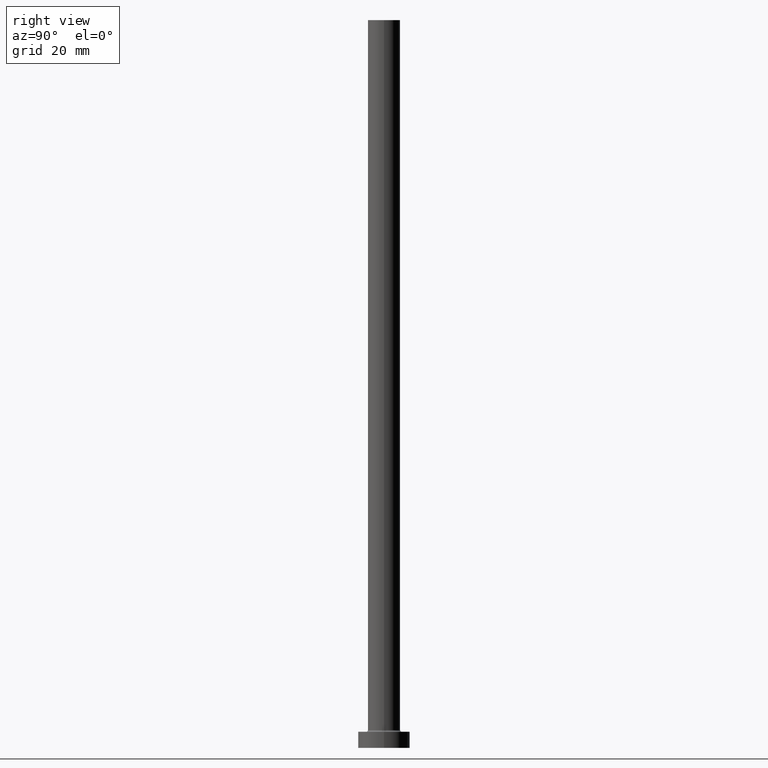
[diagram: clean part render]
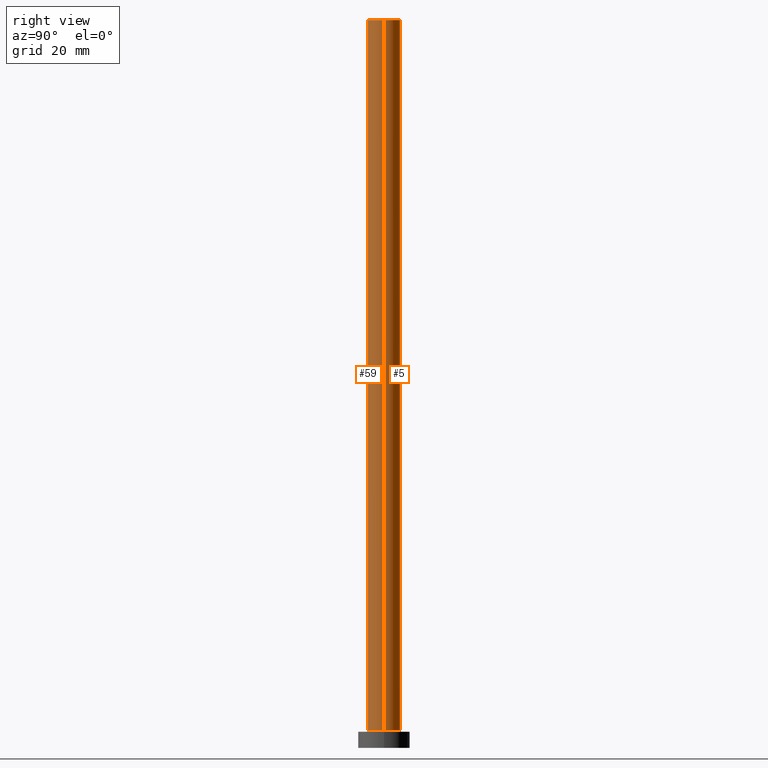
[diagram: same view with one multi-face feature highlighted, each face labeled with its STEP entity id]
A machine part, right view. The highlighted faces form ONE feature: a constant-radius fillet chain: 2 tangent blend faces with common blend radius 5 mm. The faces share edges in the B-rep.
Their STEP definitions:
[1] entity #5 (Cylinder):
#1 = VERTEX_POINT ( 'NONE', #301 ) ;
#5 = ADVANCED_FACE ( 'NONE', ( #139 ), #453, .T. ) ;
#9 = VECTOR ( 'NONE', #232, 1000.000000000000000 ) ;
#12 = CIRCLE ( 'NONE', #402, 5.000000000000000000 ) ;
#13 = CARTESIAN_POINT ( 'NONE',  ( 0.000000000000000000, 0.000000000000000000, 5.500000000000005329 ) ) ;
#22 = CARTESIAN_POINT ( 'NONE',  ( -5.000000000000000000, 0.000000000000000000, 225.0000000000000000 ) ) ;
#34 = DIRECTION ( 'NONE',  ( 1.000000000000000000, 0.000000000000000000, 0.000000000000000000 ) ) ;
#35 = EDGE_CURVE ( 'NONE', #427, #1, #350, .T. ) ;
#56 = VERTEX_POINT ( 'NONE', #345 ) ;
#82 = EDGE_CURVE ( 'NONE', #122, #56, #423, .T. ) ;
#96 = DIRECTION ( 'NONE',  ( -0.000000000000000000, -0.000000000000000000, -1.000000000000000000 ) ) ;
#100 = CARTESIAN_POINT ( 'NONE',  ( 5.000000000000000000, 6.123233995736766282E-16, 225.0000000000000000 ) ) ;
#122 = VERTEX_POINT ( 'NONE', #222 ) ;
#134 = DIRECTION ( 'NONE',  ( 0.000000000000000000, 0.000000000000000000, 1.000000000000000000 ) ) ;
#139 = FACE_OUTER_BOUND ( 'NONE', #451, .T. ) ;
#150 = DIRECTION ( 'NONE',  ( 0.000000000000000000, 0.000000000000000000, 1.000000000000000000 ) ) ;
#186 = ORIENTED_EDGE ( 'NONE', *, *, #82, .T. ) ;
#211 = VECTOR ( 'NONE', #237, 1000.000000000000000 ) ;
#222 = CARTESIAN_POINT ( 'NONE',  ( 5.000000000000000000, 6.123233995736766282E-16, 225.0000000000000000 ) ) ;
#232 = DIRECTION ( 'NONE',  ( -0.000000000000000000, -0.000000000000000000, -1.000000000000000000 ) ) ;
#237 = DIRECTION ( 'NONE',  ( -0.000000000000000000, -0.000000000000000000, -1.000000000000000000 ) ) ;
#255 = AXIS2_PLACEMENT_3D ( 'NONE', #418, #96, #276 ) ;
#256 = ORIENTED_EDGE ( 'NONE', *, *, #274, .T. ) ;
#274 = EDGE_CURVE ( 'NONE', #56, #1, #299, .T. ) ;
#276 = DIRECTION ( 'NONE',  ( -1.000000000000000000, 0.000000000000000000, 0.000000000000000000 ) ) ;
#289 = DIRECTION ( 'NONE',  ( 1.000000000000000000, 0.000000000000000000, 0.000000000000000000 ) ) ;
#299 = CIRCLE ( 'NONE', #442, 5.000000000000000000 ) ;
#301 = CARTESIAN_POINT ( 'NONE',  ( -5.000000000000000000, 0.000000000000000000, 5.500000000000005329 ) ) ;
#310 = CARTESIAN_POINT ( 'NONE',  ( 0.000000000000000000, 0.000000000000000000, 225.0000000000000000 ) ) ;
#345 = CARTESIAN_POINT ( 'NONE',  ( 5.000000000000000000, 6.123233995736766282E-16, 5.500000000000005329 ) ) ;
#350 = LINE ( 'NONE', #457, #9 ) ;
#355 = EDGE_CURVE ( 'NONE', #122, #427, #12, .T. ) ;
#375 = ORIENTED_EDGE ( 'NONE', *, *, #355, .F. ) ;
#402 = AXIS2_PLACEMENT_3D ( 'NONE', #310, #134, #34 ) ;
#415 = ORIENTED_EDGE ( 'NONE', *, *, #35, .F. ) ;
#418 = CARTESIAN_POINT ( 'NONE',  ( 0.000000000000000000, 0.000000000000000000, 225.0000000000000000 ) ) ;
#423 = LINE ( 'NONE', #100, #211 ) ;
#427 = VERTEX_POINT ( 'NONE', #22 ) ;
#442 = AXIS2_PLACEMENT_3D ( 'NONE', #13, #150, #289 ) ;
#451 = EDGE_LOOP ( 'NONE', ( #375, #186, #256, #415 ) ) ;
#453 = CYLINDRICAL_SURFACE ( 'NONE', #255, 5.000000000000000000 ) ;
#457 = CARTESIAN_POINT ( 'NONE',  ( -5.000000000000000000, 0.000000000000000000, 225.0000000000000000 ) ) ;
[2] entity #59 (Cylinder):
#1 = VERTEX_POINT ( 'NONE', #301 ) ;
#2 = CARTESIAN_POINT ( 'NONE',  ( 0.000000000000000000, 0.000000000000000000, 225.0000000000000000 ) ) ;
#9 = VECTOR ( 'NONE', #232, 1000.000000000000000 ) ;
#22 = CARTESIAN_POINT ( 'NONE',  ( -5.000000000000000000, 0.000000000000000000, 225.0000000000000000 ) ) ;
#33 = DIRECTION ( 'NONE',  ( 1.000000000000000000, 0.000000000000000000, 0.000000000000000000 ) ) ;
#35 = EDGE_CURVE ( 'NONE', #427, #1, #350, .T. ) ;
#56 = VERTEX_POINT ( 'NONE', #345 ) ;
#59 = ADVANCED_FACE ( 'NONE', ( #340 ), #172, .T. ) ;
#82 = EDGE_CURVE ( 'NONE', #122, #56, #423, .T. ) ;
#86 = DIRECTION ( 'NONE',  ( 1.000000000000000000, 0.000000000000000000, 0.000000000000000000 ) ) ;
#91 = ORIENTED_EDGE ( 'NONE', *, *, #82, .F. ) ;
#100 = CARTESIAN_POINT ( 'NONE',  ( 5.000000000000000000, 6.123233995736766282E-16, 225.0000000000000000 ) ) ;
#116 = EDGE_CURVE ( 'NONE', #427, #122, #454, .T. ) ;
#122 = VERTEX_POINT ( 'NONE', #222 ) ;
#142 = DIRECTION ( 'NONE',  ( -0.000000000000000000, -0.000000000000000000, -1.000000000000000000 ) ) ;
#154 = CARTESIAN_POINT ( 'NONE',  ( 0.000000000000000000, 0.000000000000000000, 225.0000000000000000 ) ) ;
#160 = DIRECTION ( 'NONE',  ( 0.000000000000000000, 0.000000000000000000, 1.000000000000000000 ) ) ;
#171 = ORIENTED_EDGE ( 'NONE', *, *, #116, .F. ) ;
#172 = CYLINDRICAL_SURFACE ( 'NONE', #406, 5.000000000000000000 ) ;
#176 = AXIS2_PLACEMENT_3D ( 'NONE', #448, #160, #33 ) ;
#201 = ORIENTED_EDGE ( 'NONE', *, *, #35, .T. ) ;
#203 = EDGE_CURVE ( 'NONE', #1, #56, #358, .T. ) ;
#211 = VECTOR ( 'NONE', #237, 1000.000000000000000 ) ;
#222 = CARTESIAN_POINT ( 'NONE',  ( 5.000000000000000000, 6.123233995736766282E-16, 225.0000000000000000 ) ) ;
#231 = ORIENTED_EDGE ( 'NONE', *, *, #203, .T. ) ;
#232 = DIRECTION ( 'NONE',  ( -0.000000000000000000, -0.000000000000000000, -1.000000000000000000 ) ) ;
#237 = DIRECTION ( 'NONE',  ( -0.000000000000000000, -0.000000000000000000, -1.000000000000000000 ) ) ;
#264 = AXIS2_PLACEMENT_3D ( 'NONE', #154, #409, #86 ) ;
#301 = CARTESIAN_POINT ( 'NONE',  ( -5.000000000000000000, 0.000000000000000000, 5.500000000000005329 ) ) ;
#340 = FACE_OUTER_BOUND ( 'NONE', #381, .T. ) ;
#345 = CARTESIAN_POINT ( 'NONE',  ( 5.000000000000000000, 6.123233995736766282E-16, 5.500000000000005329 ) ) ;
#350 = LINE ( 'NONE', #457, #9 ) ;
#358 = CIRCLE ( 'NONE', #176, 5.000000000000000000 ) ;
#381 = EDGE_LOOP ( 'NONE', ( #91, #171, #201, #231 ) ) ;
#391 = DIRECTION ( 'NONE',  ( -1.000000000000000000, 0.000000000000000000, 0.000000000000000000 ) ) ;
#406 = AXIS2_PLACEMENT_3D ( 'NONE', #2, #142, #391 ) ;
#409 = DIRECTION ( 'NONE',  ( 0.000000000000000000, 0.000000000000000000, 1.000000000000000000 ) ) ;
#423 = LINE ( 'NONE', #100, #211 ) ;
#427 = VERTEX_POINT ( 'NONE', #22 ) ;
#448 = CARTESIAN_POINT ( 'NONE',  ( 0.000000000000000000, 0.000000000000000000, 5.500000000000005329 ) ) ;
#454 = CIRCLE ( 'NONE', #264, 5.000000000000000000 ) ;
#457 = CARTESIAN_POINT ( 'NONE',  ( -5.000000000000000000, 0.000000000000000000, 225.0000000000000000 ) ) ;